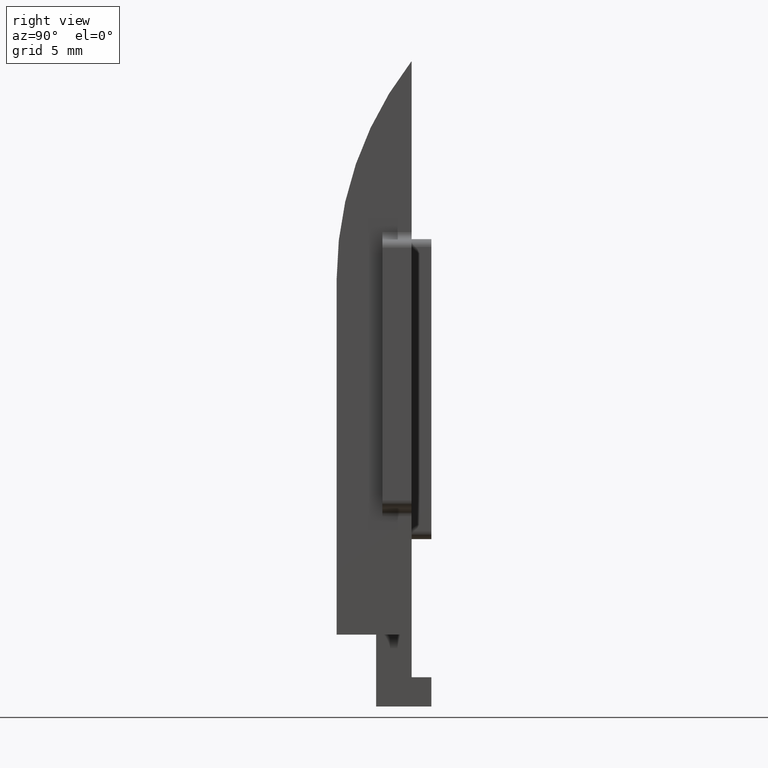
[diagram: clean part render]
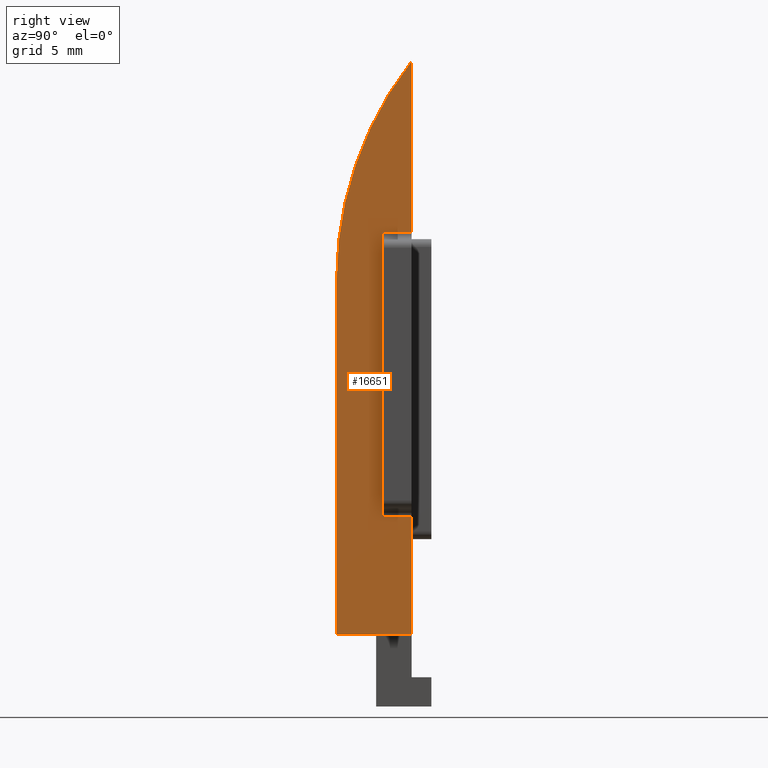
[diagram: same view with one face highlighted and labeled with its STEP entity id]
A machine part, right view. The second image highlights one B-rep face of the part: STEP entity #16651.
In plain terms, the highlighted planar face has unit normal (1, 0, 0).
Its self-contained STEP definition (entity closure, byte-faithful):
#104 = ORIENTED_EDGE ( 'NONE', *, *, #12357, .T. ) ;
#314 = VERTEX_POINT ( 'NONE', #4382 ) ;
#323 = AXIS2_PLACEMENT_3D ( 'NONE', #15889, #3507, #14327 ) ;
#341 = CARTESIAN_POINT ( 'NONE',  ( 9.000000000000000000, -1.040834085586084257E-14, 0.000000000000000000 ) ) ;
#403 = DIRECTION ( 'NONE',  ( 0.000000000000000000, -1.541976423090493168E-16, 1.000000000000000000 ) ) ;
#702 = CARTESIAN_POINT ( 'NONE',  ( 9.000000000000000000, -1.040834085586084257E-14, -2.081668171172168513E-14 ) ) ;
#1000 = EDGE_CURVE ( 'NONE', #9279, #9805, #6098, .T. ) ;
#1456 = ORIENTED_EDGE ( 'NONE', *, *, #6663, .T. ) ;
#2044 = EDGE_CURVE ( 'NONE', #14502, #9805, #3265, .T. ) ;
#2265 = EDGE_CURVE ( 'NONE', #15376, #6208, #14570, .T. ) ;
#2462 = ORIENTED_EDGE ( 'NONE', *, *, #2044, .F. ) ;
#3137 = LINE ( 'NONE', #13110, #6778 ) ;
#3212 = DIRECTION ( 'NONE',  ( 0.000000000000000000, 1.000000000000000000, -0.000000000000000000 ) ) ;
#3235 = AXIS2_PLACEMENT_3D ( 'NONE', #10586, #5010, #9014 ) ;
#3265 = LINE ( 'NONE', #17806, #3499 ) ;
#3499 = VECTOR ( 'NONE', #5429, 1000.000000000000000 ) ;
#3507 = DIRECTION ( 'NONE',  ( 1.000000000000000000, -0.000000000000000000, 0.000000000000000000 ) ) ;
#3538 = CARTESIAN_POINT ( 'NONE',  ( 9.000000000000000000, 4.750000000000001776, 0.000000000000000000 ) ) ;
#3837 = CARTESIAN_POINT ( 'NONE',  ( 9.000000000000000000, 4.750000000000001776, 0.000000000000000000 ) ) ;
#4051 = VECTOR ( 'NONE', #5568, 1000.000000000000000 ) ;
#4382 = CARTESIAN_POINT ( 'NONE',  ( 9.000000000000000000, 4.750000000000000888, 7.499999999999975131 ) ) ;
#4419 = VECTOR ( 'NONE', #3212, 1000.000000000000000 ) ;
#5010 = DIRECTION ( 'NONE',  ( 1.000000000000000000, -0.000000000000000000, 0.000000000000000000 ) ) ;
#5271 = LINE ( 'NONE', #8541, #10213 ) ;
#5429 = DIRECTION ( 'NONE',  ( 0.000000000000000000, 1.000000000000000000, 0.000000000000000000 ) ) ;
#5522 = CIRCLE ( 'NONE', #3235, 22.50000000000000711 ) ;
#5568 = DIRECTION ( 'NONE',  ( 0.000000000000000000, -1.000000000000000000, -1.734723475976807094E-16 ) ) ;
#5995 = CARTESIAN_POINT ( 'NONE',  ( 9.000000000000000000, 2.899999999999986589, 25.49999999999997868 ) ) ;
#6098 = LINE ( 'NONE', #3837, #6726 ) ;
#6158 = VERTEX_POINT ( 'NONE', #5995 ) ;
#6208 = VERTEX_POINT ( 'NONE', #16895 ) ;
#6367 = DIRECTION ( 'NONE',  ( -0.000000000000000000, 1.530638361156006245E-16, -1.000000000000000000 ) ) ;
#6663 = EDGE_CURVE ( 'NONE', #14502, #6208, #5522, .T. ) ;
#6726 = VECTOR ( 'NONE', #13631, 1000.000000000000000 ) ;
#6778 = VECTOR ( 'NONE', #6367, 1000.000000000000000 ) ;
#7275 = CARTESIAN_POINT ( 'NONE',  ( 9.000000000000000000, 4.728956136456109682, 36.29999999999999716 ) ) ;
#7291 = ORIENTED_EDGE ( 'NONE', *, *, #1000, .T. ) ;
#7340 = CARTESIAN_POINT ( 'NONE',  ( 9.000000000000000000, 0.000000000000000000, 25.49999999999997868 ) ) ;
#7517 = EDGE_CURVE ( 'NONE', #6158, #9279, #8057, .T. ) ;
#7745 = EDGE_CURVE ( 'NONE', #314, #13454, #5271, .T. ) ;
#8057 = LINE ( 'NONE', #7340, #4419 ) ;
#8124 = LINE ( 'NONE', #3538, #13900 ) ;
#8429 = VERTEX_POINT ( 'NONE', #11546 ) ;
#8480 = ORIENTED_EDGE ( 'NONE', *, *, #12267, .F. ) ;
#8541 = CARTESIAN_POINT ( 'NONE',  ( 9.000000000000000000, 0.000000000000000000, 7.499999999999975131 ) ) ;
#8966 = ORIENTED_EDGE ( 'NONE', *, *, #12361, .F. ) ;
#9014 = DIRECTION ( 'NONE',  ( 0.000000000000000000, 0.000000000000000000, -1.000000000000000000 ) ) ;
#9279 = VERTEX_POINT ( 'NONE', #13262 ) ;
#9805 = VERTEX_POINT ( 'NONE', #12869 ) ;
#9812 = DIRECTION ( 'NONE',  ( -0.000000000000000000, -1.000000000000000000, -0.000000000000000000 ) ) ;
#10213 = VECTOR ( 'NONE', #9812, 1000.000000000000000 ) ;
#10586 = CARTESIAN_POINT ( 'NONE',  ( 9.000000000000000000, 22.49999999999999289, 22.50000000000001066 ) ) ;
#11546 = CARTESIAN_POINT ( 'NONE',  ( 9.000000000000000000, 4.750000000000001776, -2.081668171172168513E-14 ) ) ;
#11783 = PLANE ( 'NONE',  #323 ) ;
#12267 = EDGE_CURVE ( 'NONE', #8429, #15376, #16694, .T. ) ;
#12357 = EDGE_CURVE ( 'NONE', #8429, #314, #8124, .T. ) ;
#12361 = EDGE_CURVE ( 'NONE', #6158, #13454, #3137, .T. ) ;
#12869 = CARTESIAN_POINT ( 'NONE',  ( 9.000000000000000000, 4.749999999999997335, 36.29999999999999716 ) ) ;
#13110 = CARTESIAN_POINT ( 'NONE',  ( 9.000000000000000000, 2.899999999999988365, 7.999999999999976019 ) ) ;
#13262 = CARTESIAN_POINT ( 'NONE',  ( 9.000000000000000000, 4.749999999999999112, 25.49999999999997868 ) ) ;
#13454 = VERTEX_POINT ( 'NONE', #17409 ) ;
#13631 = DIRECTION ( 'NONE',  ( 0.000000000000000000, -1.112002228190260459E-16, 1.000000000000000000 ) ) ;
#13900 = VECTOR ( 'NONE', #17086, 1000.000000000000000 ) ;
#14327 = DIRECTION ( 'NONE',  ( 0.000000000000000000, 0.000000000000000000, -1.000000000000000000 ) ) ;
#14502 = VERTEX_POINT ( 'NONE', #7275 ) ;
#14570 = LINE ( 'NONE', #341, #16085 ) ;
#14891 = ORIENTED_EDGE ( 'NONE', *, *, #7745, .T. ) ;
#15376 = VERTEX_POINT ( 'NONE', #702 ) ;
#15889 = CARTESIAN_POINT ( 'NONE',  ( 9.000000000000000000, 0.000000000000000000, 0.000000000000000000 ) ) ;
#15925 = FACE_OUTER_BOUND ( 'NONE', #16268, .T. ) ;
#16042 = ORIENTED_EDGE ( 'NONE', *, *, #2265, .F. ) ;
#16085 = VECTOR ( 'NONE', #403, 1000.000000000000000 ) ;
#16095 = ORIENTED_EDGE ( 'NONE', *, *, #7517, .T. ) ;
#16268 = EDGE_LOOP ( 'NONE', ( #104, #14891, #8966, #16095, #7291, #2462, #1456, #16042, #8480 ) ) ;
#16651 = ADVANCED_FACE ( 'NONE', ( #15925 ), #11783, .T. ) ;
#16694 = LINE ( 'NONE', #16713, #4051 ) ;
#16713 = CARTESIAN_POINT ( 'NONE',  ( 9.000000000000000000, 0.000000000000000000, -2.081668171172168513E-14 ) ) ;
#16895 = CARTESIAN_POINT ( 'NONE',  ( 9.000000000000000000, -1.387778780781445676E-14, 22.50000000000001066 ) ) ;
#17086 = DIRECTION ( 'NONE',  ( 0.000000000000000000, -1.112002228190260459E-16, 1.000000000000000000 ) ) ;
#17409 = CARTESIAN_POINT ( 'NONE',  ( 9.000000000000000000, 2.899999999999988365, 7.499999999999975131 ) ) ;
#17806 = CARTESIAN_POINT ( 'NONE',  ( 9.000000000000000000, 0.000000000000000000, 36.29999999999999716 ) ) ;